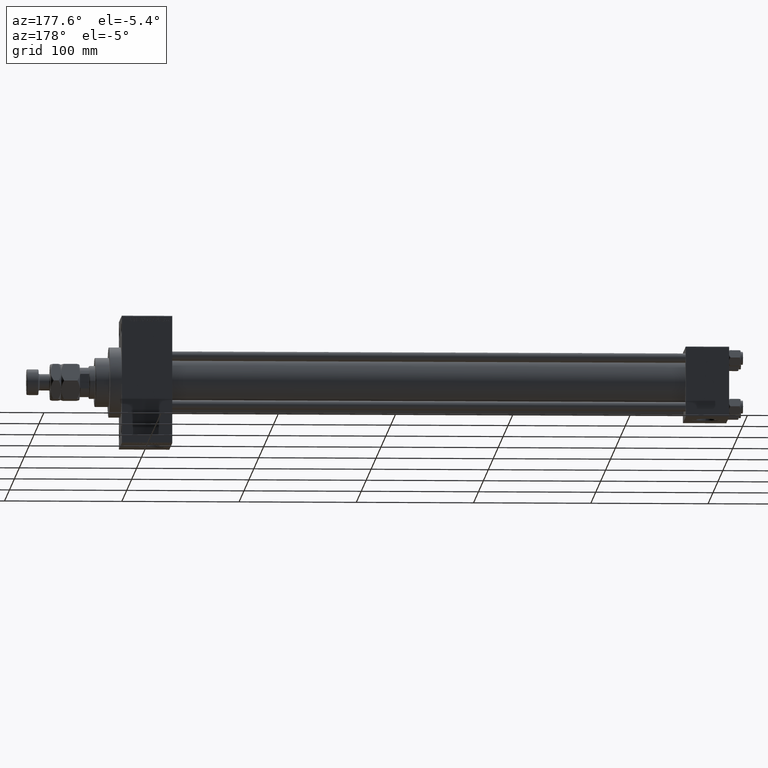
[diagram: clean part render]
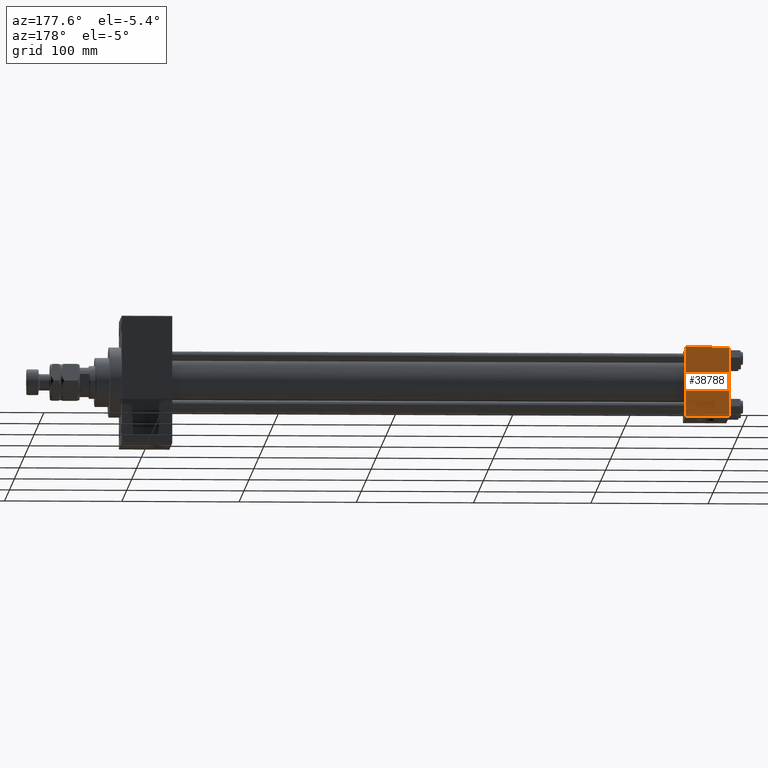
[diagram: same view with one face highlighted and labeled with its STEP entity id]
A machine part, auxiliary view. The second image highlights one B-rep face of the part: STEP entity #38788.
In plain terms, the highlighted planar face has unit normal (0, 1, 0).
Its self-contained STEP definition (entity closure, byte-faithful):
#1559 = DIRECTION ( 'NONE',  ( 0.000000000000000000, 0.000000000000000000, -1.000000000000000000 ) ) ;
#2579 = CARTESIAN_POINT ( 'NONE',  ( 37.00000000000000000, 29.99999999999999289, -29.50000000000000000 ) ) ;
#2701 = VECTOR ( 'NONE', #18336, 1000.000000000000000 ) ;
#6523 = DIRECTION ( 'NONE',  ( 0.000000000000000000, 0.000000000000000000, -1.000000000000000000 ) ) ;
#7919 = DIRECTION ( 'NONE',  ( -0.000000000000000000, 1.000000000000000000, 0.000000000000000000 ) ) ;
#8587 = EDGE_LOOP ( 'NONE', ( #37435, #10266, #14626, #40012 ) ) ;
#8999 = CARTESIAN_POINT ( 'NONE',  ( 0.000000000000000000, 29.99999999999999289, -29.50000000000000000 ) ) ;
#9649 = LINE ( 'NONE', #38206, #48208 ) ;
#10266 = ORIENTED_EDGE ( 'NONE', *, *, #42177, .T. ) ;
#11707 = CARTESIAN_POINT ( 'NONE',  ( 37.00000000000000000, 29.99999999999999289, -29.50000000000000000 ) ) ;
#12521 = VERTEX_POINT ( 'NONE', #11707 ) ;
#14537 = EDGE_CURVE ( 'NONE', #33808, #12521, #44079, .T. ) ;
#14626 = ORIENTED_EDGE ( 'NONE', *, *, #21305, .F. ) ;
#15422 = CARTESIAN_POINT ( 'NONE',  ( 37.00000000000000000, 29.99999999999999289, 30.00000000000000000 ) ) ;
#16961 = CARTESIAN_POINT ( 'NONE',  ( 0.000000000000000000, 29.99999999999999289, 29.50000000000000000 ) ) ;
#18336 = DIRECTION ( 'NONE',  ( -1.000000000000000000, 0.000000000000000000, 0.000000000000000000 ) ) ;
#19791 = FACE_OUTER_BOUND ( 'NONE', #8587, .T. ) ;
#21305 = EDGE_CURVE ( 'NONE', #30186, #34374, #9649, .T. ) ;
#25024 = CARTESIAN_POINT ( 'NONE',  ( 37.00000000000000000, 29.99999999999999289, 30.00000000000000000 ) ) ;
#25671 = DIRECTION ( 'NONE',  ( 1.000000000000000000, 0.000000000000000000, 0.000000000000000000 ) ) ;
#26292 = LINE ( 'NONE', #2579, #2701 ) ;
#29220 = EDGE_CURVE ( 'NONE', #30186, #33808, #40629, .T. ) ;
#30186 = VERTEX_POINT ( 'NONE', #16961 ) ;
#30587 = AXIS2_PLACEMENT_3D ( 'NONE', #15422, #7919, #43465 ) ;
#33808 = VERTEX_POINT ( 'NONE', #49810 ) ;
#34374 = VERTEX_POINT ( 'NONE', #8999 ) ;
#37435 = ORIENTED_EDGE ( 'NONE', *, *, #14537, .T. ) ;
#38206 = CARTESIAN_POINT ( 'NONE',  ( 0.000000000000000000, 29.99999999999999289, 30.00000000000000000 ) ) ;
#38788 = ADVANCED_FACE ( 'NONE', ( #19791 ), #43206, .T. ) ;
#40012 = ORIENTED_EDGE ( 'NONE', *, *, #29220, .T. ) ;
#40150 = VECTOR ( 'NONE', #25671, 1000.000000000000000 ) ;
#40629 = LINE ( 'NONE', #41382, #40150 ) ;
#41382 = CARTESIAN_POINT ( 'NONE',  ( 37.00000000000000000, 29.99999999999999289, 29.50000000000000000 ) ) ;
#42177 = EDGE_CURVE ( 'NONE', #12521, #34374, #26292, .T. ) ;
#43206 = PLANE ( 'NONE',  #30587 ) ;
#43465 = DIRECTION ( 'NONE',  ( 0.000000000000000000, -0.000000000000000000, 1.000000000000000000 ) ) ;
#44079 = LINE ( 'NONE', #25024, #45486 ) ;
#45486 = VECTOR ( 'NONE', #1559, 1000.000000000000000 ) ;
#48208 = VECTOR ( 'NONE', #6523, 1000.000000000000000 ) ;
#49810 = CARTESIAN_POINT ( 'NONE',  ( 37.00000000000000000, 29.99999999999999289, 29.50000000000000000 ) ) ;